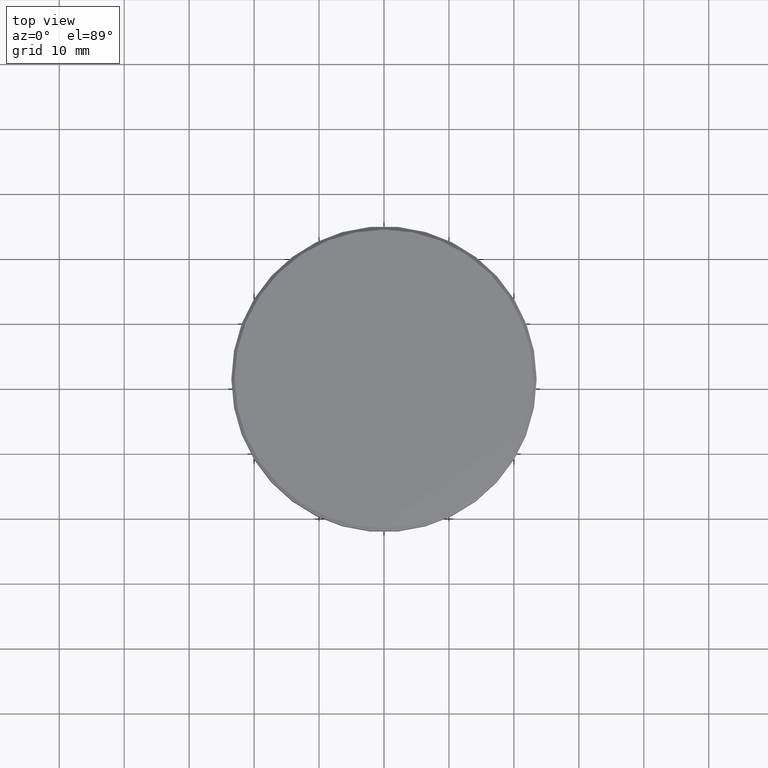
[diagram: clean part render]
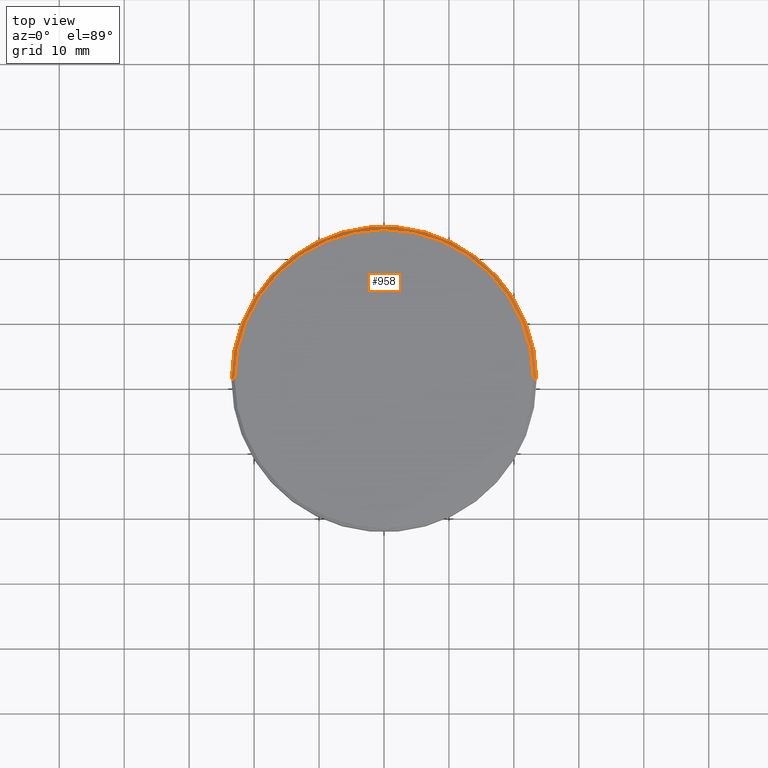
[diagram: same view with one face highlighted and labeled with its STEP entity id]
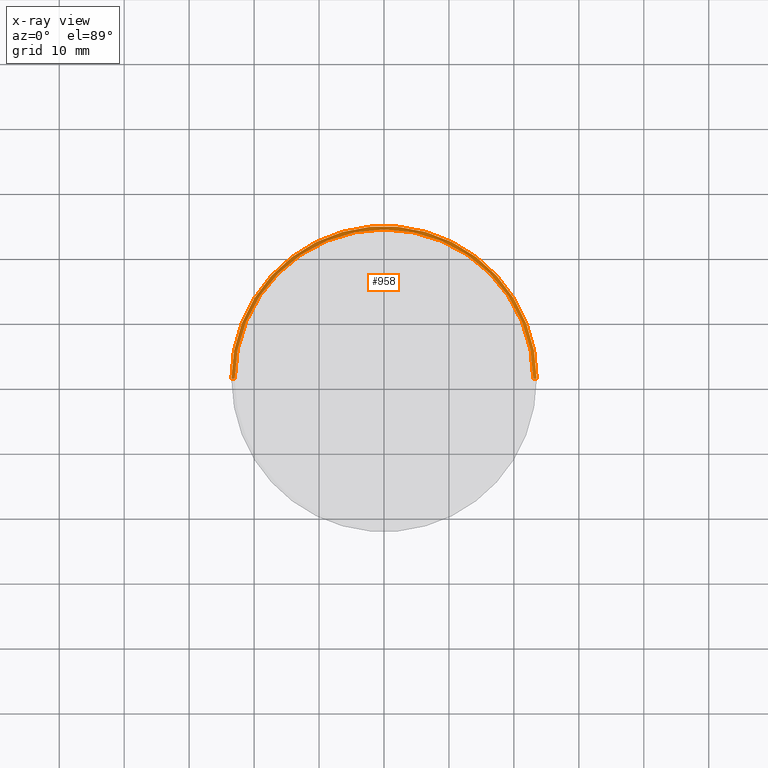
[diagram: x-ray of the same camera — body ghosted, the highlighted face saturated]
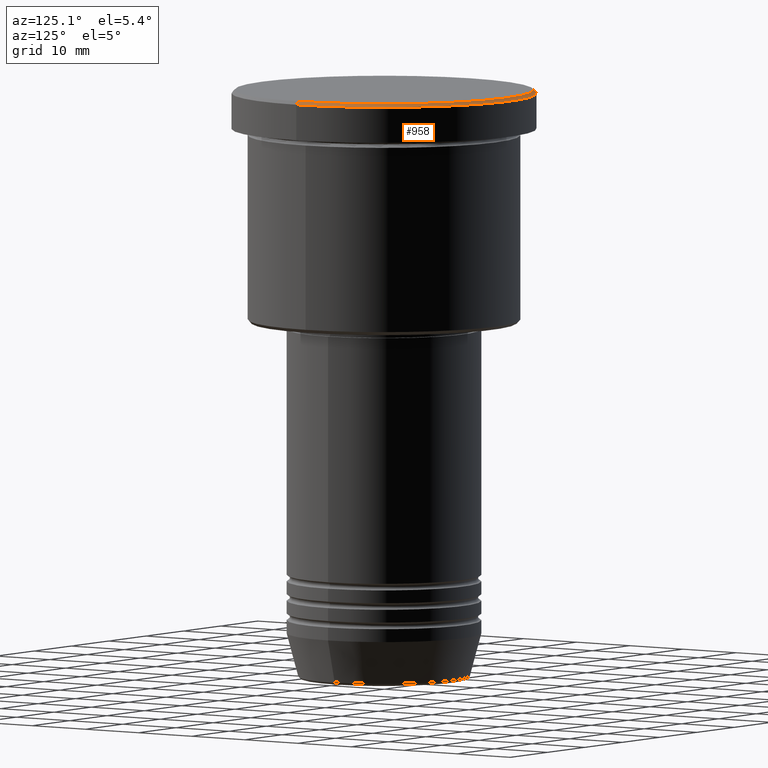
[diagram: same view with one face highlighted and labeled with its STEP entity id]
A machine part, top view. The second image highlights one B-rep face of the part: STEP entity #958.
The next image is the same camera in x-ray: the body ghosted, the highlighted face saturated — about 0% of this face is hidden behind the body in this view.
A second angle (auxiliary view) of the same face is appended — the face is thin or edge-on in the first view.
In plain terms, the highlighted conical surface has half-angle 45 deg.
Its self-contained STEP definition (entity closure, byte-faithful):
#49 = DIRECTION ( 'NONE',  ( 0.000000000000000000, 0.000000000000000000, -1.000000000000000000 ) ) ;
#89 = CARTESIAN_POINT ( 'NONE',  ( 22.99999999999999645, 2.847303808017596139E-15, 0.000000000000000000 ) ) ;
#90 = EDGE_CURVE ( 'NONE', #710, #583, #972, .T. ) ;
#106 = ORIENTED_EDGE ( 'NONE', *, *, #90, .T. ) ;
#143 = AXIS2_PLACEMENT_3D ( 'NONE', #405, #49, #341 ) ;
#161 = DIRECTION ( 'NONE',  ( 0.000000000000000000, 0.000000000000000000, -1.000000000000000000 ) ) ;
#166 = DIRECTION ( 'NONE',  ( 1.000000000000000000, 0.000000000000000000, 0.000000000000000000 ) ) ;
#174 = CARTESIAN_POINT ( 'NONE',  ( 23.50000000000000000, 0.000000000000000000, -0.5000000000000143219 ) ) ;
#185 = LINE ( 'NONE', #558, #941 ) ;
#189 = EDGE_LOOP ( 'NONE', ( #392, #106, #1175, #660 ) ) ;
#249 = CARTESIAN_POINT ( 'NONE',  ( 22.99999999999999645, 2.816687638038911957E-15, 0.000000000000000000 ) ) ;
#250 = DIRECTION ( 'NONE',  ( -0.000000000000000000, -0.000000000000000000, 1.000000000000000000 ) ) ;
#336 = CARTESIAN_POINT ( 'NONE',  ( 0.000000000000000000, 0.000000000000000000, 0.000000000000000000 ) ) ;
#341 = DIRECTION ( 'NONE',  ( 1.000000000000000000, 0.000000000000000000, 0.000000000000000000 ) ) ;
#352 = AXIS2_PLACEMENT_3D ( 'NONE', #336, #161, #718 ) ;
#392 = ORIENTED_EDGE ( 'NONE', *, *, #978, .F. ) ;
#405 = CARTESIAN_POINT ( 'NONE',  ( 0.000000000000000000, 0.000000000000000000, -0.5000000000000143219 ) ) ;
#426 = CIRCLE ( 'NONE', #1134, 22.99999999999999645 ) ;
#434 = DIRECTION ( 'NONE',  ( 0.7071067811865401342, 8.659560562354842879E-17, -0.7071067811865549002 ) ) ;
#529 = CARTESIAN_POINT ( 'NONE',  ( 0.000000000000000000, 0.000000000000000000, 0.000000000000000000 ) ) ;
#558 = CARTESIAN_POINT ( 'NONE',  ( -22.99999999999999645, 0.000000000000000000, 0.000000000000000000 ) ) ;
#568 = EDGE_CURVE ( 'NONE', #1020, #583, #618, .T. ) ;
#583 = VERTEX_POINT ( 'NONE', #174 ) ;
#618 = CIRCLE ( 'NONE', #143, 23.50000000000000000 ) ;
#660 = ORIENTED_EDGE ( 'NONE', *, *, #1167, .F. ) ;
#710 = VERTEX_POINT ( 'NONE', #89 ) ;
#718 = DIRECTION ( 'NONE',  ( -1.000000000000000000, 0.000000000000000000, 0.000000000000000000 ) ) ;
#735 = VECTOR ( 'NONE', #434, 1000.000000000000000 ) ;
#886 = CARTESIAN_POINT ( 'NONE',  ( -22.99999999999999645, 0.000000000000000000, 0.000000000000000000 ) ) ;
#892 = CONICAL_SURFACE ( 'NONE', #352, 22.99999999999999645, 0.7853981633974378429 ) ;
#941 = VECTOR ( 'NONE', #1015, 1000.000000000000000 ) ;
#958 = ADVANCED_FACE ( 'NONE', ( #1156 ), #892, .T. ) ;
#972 = LINE ( 'NONE', #249, #735 ) ;
#978 = EDGE_CURVE ( 'NONE', #710, #1040, #426, .T. ) ;
#1015 = DIRECTION ( 'NONE',  ( -0.7071067811865401342, 0.000000000000000000, -0.7071067811865549002 ) ) ;
#1020 = VERTEX_POINT ( 'NONE', #1072 ) ;
#1040 = VERTEX_POINT ( 'NONE', #886 ) ;
#1072 = CARTESIAN_POINT ( 'NONE',  ( -23.50000000000000000, 2.877919977996280320E-15, -0.5000000000000143219 ) ) ;
#1134 = AXIS2_PLACEMENT_3D ( 'NONE', #529, #250, #166 ) ;
#1156 = FACE_OUTER_BOUND ( 'NONE', #189, .T. ) ;
#1167 = EDGE_CURVE ( 'NONE', #1040, #1020, #185, .T. ) ;
#1175 = ORIENTED_EDGE ( 'NONE', *, *, #568, .F. ) ;